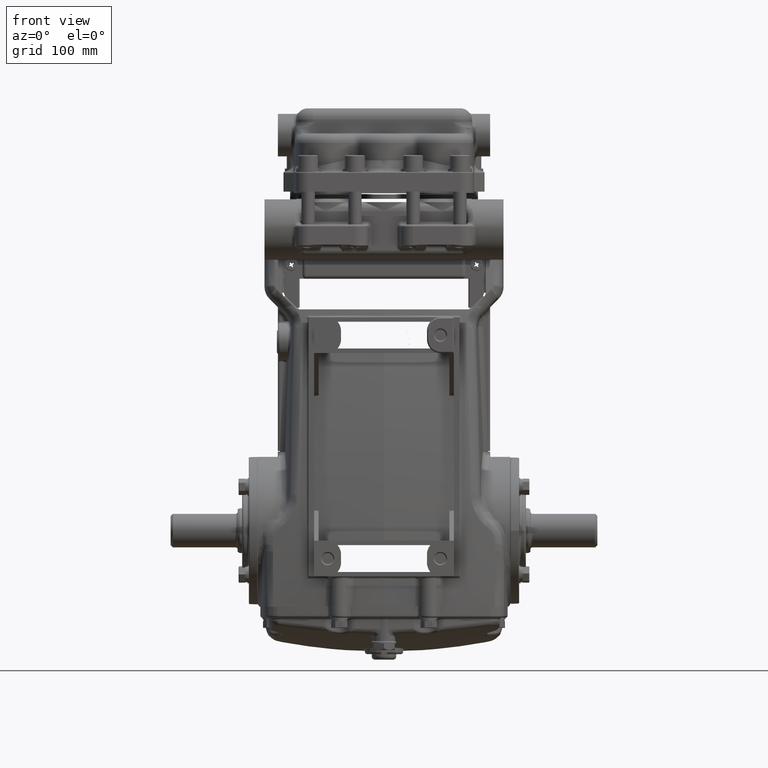
[diagram: clean part render]
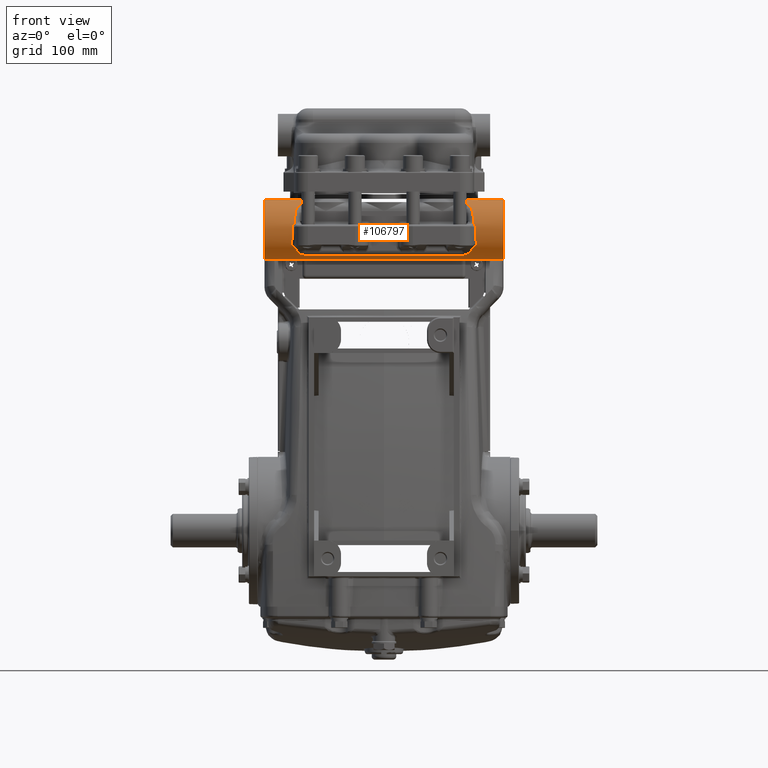
[diagram: same view with one face highlighted and labeled with its STEP entity id]
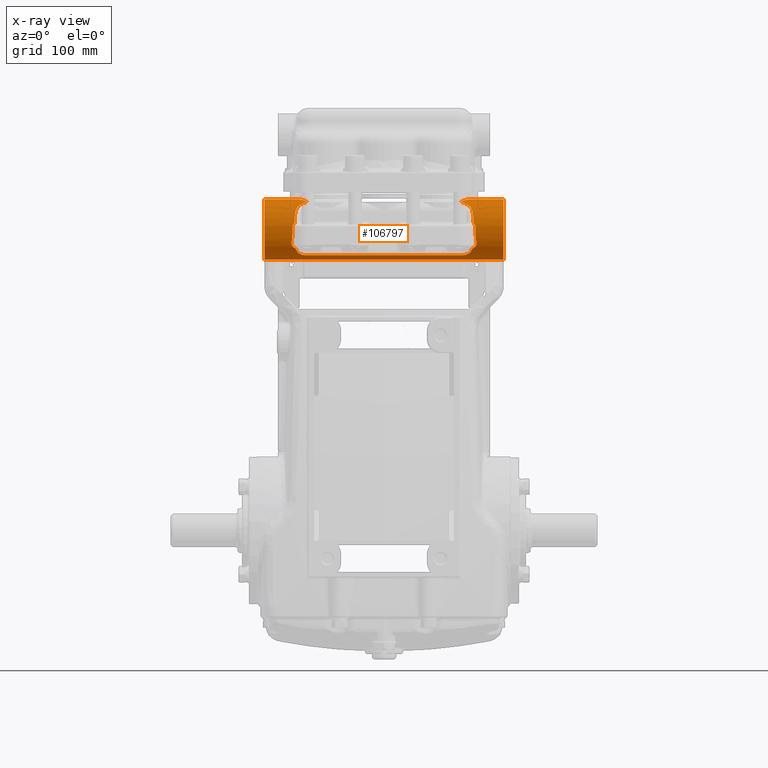
[diagram: x-ray of the same camera — body ghosted, the highlighted face saturated]
A machine part, front view. The second image highlights one B-rep face of the part: STEP entity #106797.
The next image is the same camera in x-ray: the body ghosted, the highlighted face saturated — about 0% of this face is hidden behind the body in this view.
In plain terms, the highlighted cylindrical surface (edge-blend (fillet) strip) has radius 27 mm, axis along (1, 0, 0).
Its self-contained STEP definition (entity closure, byte-faithful):
#29 = EDGE_CURVE ( 'NONE', #95721, #57629, #79998, .T. ) ;
#51 = CARTESIAN_POINT ( 'NONE',  ( 3.219834307693909548, -3.737210286616310384, 10.52743367319381740 ) ) ;
#343 = CARTESIAN_POINT ( 'NONE',  ( -3.069685971103251809, -3.423581161372963866, 9.853132108676227574 ) ) ;
#532 = EDGE_CURVE ( 'NONE', #109257, #2074, #10434, .T. ) ;
#831 = CARTESIAN_POINT ( 'NONE',  ( -3.206766684728637795, -3.548363120745090082, 10.00116585368456867 ) ) ;
#899 = CARTESIAN_POINT ( 'NONE',  ( -3.015540796630078013, -3.352199229448795670, 9.788878403447439425 ) ) ;
#1342 = CARTESIAN_POINT ( 'NONE',  ( -3.132279291211912842, -3.573409068969555680, 11.18253037871627242 ) ) ;
#1771 = ORIENTED_EDGE ( 'NONE', *, *, #51447, .F. ) ;
#1891 = CARTESIAN_POINT ( 'NONE',  ( -3.149598715442914809, -3.703225729308054603, 10.89402009235990931 ) ) ;
#1901 = CARTESIAN_POINT ( 'NONE',  ( 3.045762744328535110, -2.677165354330709679, 11.67322834645669438 ) ) ;
#1997 = CARTESIAN_POINT ( 'NONE',  ( -2.864332904029728066, -3.250795395109904451, 9.715249696813636149 ) ) ;
#2074 = VERTEX_POINT ( 'NONE', #99339 ) ;
#2097 = VECTOR ( 'NONE', #34382, 39.37007874015748143 ) ;
#2437 = B_SPLINE_CURVE_WITH_KNOTS ( 'NONE', 3,
 ( #5630, #111979, #85089, #94796, #66775, #41607, #25042, #33044, #50773, #94223, #40457, #69055, #16494, #68493, #76499, #51346, #7917, #85656, #93660, #75928 ),
 .UNSPECIFIED., .F., .F.,
 ( 4, 2, 2, 2, 2, 2, 2, 2, 2, 4 ),
 ( 4.336808689942017736E-19, 0.0008495751487899506123, 0.001699150297579900791, 0.003398300595159852323, 0.005097450892739803854, 0.006796601190319755820, 0.008495751487899706050, 0.01019490178547965802, 0.01189405208305960998, 0.01359320238063956195 ),
 .UNSPECIFIED. ) ;
#2471 = CARTESIAN_POINT ( 'NONE',  ( -3.036664178223239308, -3.377273783015291020, 11.41011149074232911 ) ) ;
#2920 = CARTESIAN_POINT ( 'NONE',  ( -2.734411693662819332, -3.075015931305001171, 11.59743843271280994 ) ) ;
#3476 = CARTESIAN_POINT ( 'NONE',  ( -2.703063879007835180, -3.123889988894102299, 11.57480314960629819 ) ) ;
#4662 = CARTESIAN_POINT ( 'NONE',  ( -2.893887638193734180, -2.886917786378004447, 11.65259511614607035 ) ) ;
#4828 = LINE ( 'NONE', #57971, #112797 ) ;
#4916 = CARTESIAN_POINT ( 'NONE',  ( -3.236622165656362071, -3.698532371087992487, 10.31175103902605628 ) ) ;
#5079 = CARTESIAN_POINT ( 'NONE',  ( 3.132279291211913286, -3.573409068969555680, 11.18253037871627242 ) ) ;
#5263 = VERTEX_POINT ( 'NONE', #106747 ) ;
#5333 = CARTESIAN_POINT ( 'NONE',  ( -2.782440837087044372, -3.149836915423003703, 11.56237251294183110 ) ) ;
#5630 = CARTESIAN_POINT ( 'NONE',  ( 2.755905511811024056, -3.232820329277022342, 9.704035465274161609 ) ) ;
#5805 = B_SPLINE_CURVE_WITH_KNOTS ( 'NONE', 3,
 ( #831, #89973, #108259, #30471, #97998, #48182, #83079, #81377 ),
 .UNSPECIFIED., .F., .F.,
 ( 4, 2, 2, 4 ),
 ( 0.000000000000000000, 0.001491846634435635335, 0.002237769951653452785, 0.002983693268871270669 ),
 .UNSPECIFIED. ) ;
#5834 = CARTESIAN_POINT ( 'NONE',  ( -3.176280486176047191, -3.528911389200699134, 9.974073427253149049 ) ) ;
#5847 = CARTESIAN_POINT ( 'NONE',  ( 3.206766684728639127, -3.548363120745090082, 10.00116585368456867 ) ) ;
#6407 = CARTESIAN_POINT ( 'NONE',  ( -3.115194936705631967, -3.497917189525167281, 9.934695475503065865 ) ) ;
#6555 = CARTESIAN_POINT ( 'NONE',  ( 3.257404880784307011, -3.626447676547790433, 10.13188976377952599 ) ) ;
#7218 = ORIENTED_EDGE ( 'NONE', *, *, #111706, .F. ) ;
#7593 = VERTEX_POINT ( 'NONE', #81544 ) ;
#7892 = CARTESIAN_POINT ( 'NONE',  ( -3.215049494645032535, -3.731506597940573045, 10.74573642007671204 ) ) ;
#7917 = CARTESIAN_POINT ( 'NONE',  ( 3.078161614725341444, -3.437912990709868222, 9.867507465431391012 ) ) ;
#9006 = CARTESIAN_POINT ( 'NONE',  ( -3.149606191704699576, -3.715641493415086760, 10.83721544519779734 ) ) ;
#9083 = CARTESIAN_POINT ( 'NONE',  ( 2.957096612547518877, -3.290505661080711963, 11.47884158129839527 ) ) ;
#9209 = CARTESIAN_POINT ( 'NONE',  ( 3.045762744328535110, -2.677165354330709679, 11.67322834645669438 ) ) ;
#9697 = CARTESIAN_POINT ( 'NONE',  ( 3.124344831771431519, -3.502161705685002513, 9.939877122648191232 ) ) ;
#10001 = CARTESIAN_POINT ( 'NONE',  ( 2.734411693662820220, -3.075015931305001171, 11.59743843271280994 ) ) ;
#10183 = VERTEX_POINT ( 'NONE', #95609 ) ;
#10434 = CIRCLE ( 'NONE', #74228, 1.062992125984251857 ) ;
#10618 = CARTESIAN_POINT ( 'NONE',  ( 3.219426393084986238, -3.557067703654892998, 10.01361665346421148 ) ) ;
#10762 = CARTESIAN_POINT ( 'NONE',  ( 2.769180171945586189, -3.140055375377999169, 11.56716607815148024 ) ) ;
#10887 = VERTEX_POINT ( 'NONE', #27099 ) ;
#11169 = CARTESIAN_POINT ( 'NONE',  ( 4.212598425196850904, -2.677165354330709679, 11.67322834645669438 ) ) ;
#11367 = CARTESIAN_POINT ( 'NONE',  ( -3.256021875541832422, -3.604499970963353395, 10.09061831402645915 ) ) ;
#11459 = VERTEX_POINT ( 'NONE', #11367 ) ;
#12250 = VERTEX_POINT ( 'NONE', #84070 ) ;
#12408 = ORIENTED_EDGE ( 'NONE', *, *, #45815, .F. ) ;
#12802 = CARTESIAN_POINT ( 'NONE',  ( -2.789061367396744817, -3.154719560246674437, 11.55993316265685245 ) ) ;
#12831 = VECTOR ( 'NONE', #94978, 39.37007874015748143 ) ;
#13102 = CARTESIAN_POINT ( 'NONE',  ( 3.110992760257861534, -3.507095954235412982, 11.27459093538011814 ) ) ;
#13365 = CARTESIAN_POINT ( 'NONE',  ( -2.860917082337589790, -3.208676869834902856, 11.53107944868841628 ) ) ;
#13856 = CARTESIAN_POINT ( 'NONE',  ( -3.206766684728637795, -3.548363120745090082, 10.00116585368456867 ) ) ;
#14250 = ORIENTED_EDGE ( 'NONE', *, *, #15522, .T. ) ;
#15522 = EDGE_CURVE ( 'NONE', #112770, #70041, #100107, .T. ) ;
#15548 = CARTESIAN_POINT ( 'NONE',  ( 2.848187453478340014, -2.932928124879681686, 11.64226991921527343 ) ) ;
#15782 = B_SPLINE_CURVE_WITH_KNOTS ( 'NONE', 3,
 ( #79147, #10001, #68913, #35697 ),
 .UNSPECIFIED., .F., .F.,
 ( 4, 4 ),
 ( 0.0006626590939865120537, 0.005358847693079000357 ),
 .UNSPECIFIED. ) ;
#15878 = CARTESIAN_POINT ( 'NONE',  ( 3.215049494645033867, -3.731506597940573045, 10.74573642007671204 ) ) ;
#16096 = CARTESIAN_POINT ( 'NONE',  ( 3.223700129393566094, -3.728933653851702168, 10.45422301061208437 ) ) ;
#16494 = CARTESIAN_POINT ( 'NONE',  ( 3.015540796630078901, -3.352199229448795670, 9.788878403447439425 ) ) ;
#16779 = EDGE_CURVE ( 'NONE', #45216, #7593, #100262, .T. ) ;
#16823 = EDGE_CURVE ( 'NONE', #27263, #7593, #110858, .T. ) ;
#17221 = CARTESIAN_POINT ( 'NONE',  ( 3.247240120967012533, -3.667263346255338785, 10.22037733209156762 ) ) ;
#18296 = EDGE_CURVE ( 'NONE', #73608, #24784, #101885, .T. ) ;
#18314 = VERTEX_POINT ( 'NONE', #77267 ) ;
#18335 = CARTESIAN_POINT ( 'NONE',  ( 3.218239791042039943, -3.740564060635579668, 10.64974272841313052 ) ) ;
#18429 = EDGE_CURVE ( 'NONE', #24784, #92375, #109614, .T. ) ;
#18597 = ORIENTED_EDGE ( 'NONE', *, *, #53231, .T. ) ;
#18998 = ORIENTED_EDGE ( 'NONE', *, *, #103289, .F. ) ;
#19082 = CARTESIAN_POINT ( 'NONE',  ( -3.107429519491915482, -3.498176461920779357, 11.28558005805626152 ) ) ;
#19181 = CARTESIAN_POINT ( 'NONE',  ( -2.843708680402824207, -3.244227866256196080, 9.711114069840959928 ) ) ;
#19339 = CARTESIAN_POINT ( 'NONE',  ( 2.886296872217383402, -3.228705197050003139, 11.51927144089147426 ) ) ;
#19402 = B_SPLINE_CURVE_WITH_KNOTS ( 'NONE', 3,
 ( #104861, #43086, #68265, #103745 ),
 .UNSPECIFIED., .F., .F.,
 ( 4, 4 ),
 ( 0.000000000000000000, 0.001187826063824906631 ),
 .UNSPECIFIED. ) ;
#19409 = CARTESIAN_POINT ( 'NONE',  ( 3.150924689293978620, -3.515283072652620522, 9.956350537029539538 ) ) ;
#19764 = CARTESIAN_POINT ( 'NONE',  ( 3.256021875541833310, -3.604499970963353395, 10.09061831402645915 ) ) ;
#20056 = ORIENTED_EDGE ( 'NONE', *, *, #82809, .T. ) ;
#20095 = CARTESIAN_POINT ( 'NONE',  ( -2.767164655030086351, -3.025872284767706422, 11.61577007187296573 ) ) ;
#20319 = CARTESIAN_POINT ( 'NONE',  ( 3.246417559868115088, -3.585310303430194079, 10.05768491299726186 ) ) ;
#20445 = ORIENTED_EDGE ( 'NONE', *, *, #16823, .F. ) ;
#21843 = CARTESIAN_POINT ( 'NONE',  ( -2.824399946746749990, -2.954806220435177266, 11.63655858346388605 ) ) ;
#23076 = CARTESIAN_POINT ( 'NONE',  ( 3.149606191704700464, -3.715641493415086760, 10.83721544519779734 ) ) ;
#24348 = DIRECTION ( 'NONE',  ( -1.000000000000000000, -0.000000000000000000, -0.000000000000000000 ) ) ;
#24784 = VERTEX_POINT ( 'NONE', #11169 ) ;
#24910 = CARTESIAN_POINT ( 'NONE',  ( -4.212598425196850016, -3.232820329277022342, 9.704035465274161609 ) ) ;
#25007 = EDGE_CURVE ( 'NONE', #2074, #92375, #4828, .T. ) ;
#25042 = CARTESIAN_POINT ( 'NONE',  ( 2.864332904029729399, -3.250795395109904451, 9.715249696813636149 ) ) ;
#25205 = LINE ( 'NONE', #103556, #54940 ) ;
#25222 = CARTESIAN_POINT ( 'NONE',  ( 2.977640032402243175, -2.787960670884535030, 11.66864237985080521 ) ) ;
#25716 = CARTESIAN_POINT ( 'NONE',  ( 3.142233227876007895, -3.510833139466164265, 9.950692193275632036 ) ) ;
#26429 = CARTESIAN_POINT ( 'NONE',  ( -2.696815162708711799, -3.128142923548339116, 11.57282485865083466 ) ) ;
#26512 = CARTESIAN_POINT ( 'NONE',  ( -3.149606191704699576, -3.715641493415086760, 10.83721544519779734 ) ) ;
#26686 = CARTESIAN_POINT ( 'NONE',  ( -3.213154401202496402, -3.730656157903641024, 10.75218904431644695 ) ) ;
#26875 = CARTESIAN_POINT ( 'NONE',  ( 3.220188915482557590, -3.736460105195991144, 10.69881889763779448 ) ) ;
#27068 = CARTESIAN_POINT ( 'NONE',  ( -4.212598425196850016, -2.677165354330709679, 10.61023622047244253 ) ) ;
#27099 = CARTESIAN_POINT ( 'NONE',  ( 2.799682996578750416, -2.975608929221370769, 11.63047329709287148 ) ) ;
#27263 = VERTEX_POINT ( 'NONE', #76206 ) ;
#27545 = CARTESIAN_POINT ( 'NONE',  ( 3.120329391505896499, -3.532942632693188756, 11.24094915304321063 ) ) ;
#27630 = CYLINDRICAL_SURFACE ( 'NONE', #47736, 1.062992125984251857 ) ;
#27881 = CARTESIAN_POINT ( 'NONE',  ( 2.999344287789138530, -3.333235010200544135, 11.44703620337553218 ) ) ;
#28191 = CARTESIAN_POINT ( 'NONE',  ( -3.145180089888729213, -3.642572957259976096, 11.05608667829688230 ) ) ;
#28294 = CARTESIAN_POINT ( 'NONE',  ( -2.778230847305904305, -3.233405064343089830, 9.704393247873156270 ) ) ;
#28629 = CARTESIAN_POINT ( 'NONE',  ( 2.755905511811024500, -3.130243965405963724, 11.57183490604279896 ) ) ;
#28805 = CARTESIAN_POINT ( 'NONE',  ( -2.755905511811023612, -3.130243965405963724, 11.57183490604279896 ) ) ;
#29172 = CARTESIAN_POINT ( 'NONE',  ( 4.212598425196850904, -2.677165354330709679, 10.61023622047244253 ) ) ;
#29390 = CARTESIAN_POINT ( 'NONE',  ( 2.703063879007836512, -3.123889988894102299, 11.57480314960629819 ) ) ;
#29487 = ORIENTED_EDGE ( 'NONE', *, *, #44966, .T. ) ;
#29982 = CARTESIAN_POINT ( 'NONE',  ( 3.206766684728639127, -3.548363120745090082, 10.00116585368456867 ) ) ;
#30471 = CARTESIAN_POINT ( 'NONE',  ( -3.242787002142094366, -3.580471817703969606, 10.04981767958457084 ) ) ;
#30793 = CARTESIAN_POINT ( 'NONE',  ( 3.149250120630475713, -3.686305834633085698, 10.94923161688224944 ) ) ;
#30857 = B_SPLINE_CURVE_WITH_KNOTS ( 'NONE', 3,
 ( #3476, #2920, #20095, #37758 ),
 .UNSPECIFIED., .F., .F.,
 ( 4, 4 ),
 ( 0.0006626590939865120537, 0.005358847693079000357 ),
 .UNSPECIFIED. ) ;
#31062 = AXIS2_PLACEMENT_3D ( 'NONE', #29172, #57151, #81210 ) ;
#31193 = CARTESIAN_POINT ( 'NONE',  ( -3.231521219349141827, -3.711044992094422845, 10.35841801728183853 ) ) ;
#31354 = CARTESIAN_POINT ( 'NONE',  ( 3.128168243621216149, -3.557735311505013431, 11.20635196821153912 ) ) ;
#31539 = CARTESIAN_POINT ( 'NONE',  ( -3.124344831771431075, -3.502161705685002513, 9.939877122648191232 ) ) ;
#33044 = CARTESIAN_POINT ( 'NONE',  ( 2.903928192809250852, -3.267534822896893232, 9.726202175992195720 ) ) ;
#33196 = DIRECTION ( 'NONE',  ( 0.000000000000000000, 0.000000000000000000, -1.000000000000000000 ) ) ;
#33218 = CARTESIAN_POINT ( 'NONE',  ( 2.824399946746750878, -2.954806220435177266, 11.63655858346388605 ) ) ;
#33240 = CARTESIAN_POINT ( 'NONE',  ( -4.212598425196850016, -2.677165354330709679, 11.67322834645669261 ) ) ;
#33581 = CARTESIAN_POINT ( 'NONE',  ( -3.208503504809922635, -3.728864679514924507, 10.76490362756616648 ) ) ;
#33766 = CARTESIAN_POINT ( 'NONE',  ( 3.225460419117637478, -3.725055700257784430, 10.43004216937371886 ) ) ;
#34283 = EDGE_CURVE ( 'NONE', #67362, #18314, #72528, .T. ) ;
#34358 = CARTESIAN_POINT ( 'NONE',  ( 2.799682996578750416, -2.975608929221370769, 11.63047329709287148 ) ) ;
#34382 = DIRECTION ( 'NONE',  ( 1.000000000000000000, 0.000000000000000000, 0.000000000000000000 ) ) ;
#35643 = CARTESIAN_POINT ( 'NONE',  ( -3.086463418050846119, -3.452534142405696560, 11.33788073305197663 ) ) ;
#35697 = CARTESIAN_POINT ( 'NONE',  ( 2.799682996578750416, -2.975608929221370769, 11.63047329709287148 ) ) ;
#36116 = CARTESIAN_POINT ( 'NONE',  ( 3.146484559917392509, -3.654334087182100177, 11.02967162599870576 ) ) ;
#36293 = CARTESIAN_POINT ( 'NONE',  ( -2.767098590415977277, -3.232820329277023230, 9.704035465274166938 ) ) ;
#36538 = ORIENTED_EDGE ( 'NONE', *, *, #36962, .F. ) ;
#36599 = CARTESIAN_POINT ( 'NONE',  ( -3.105610106383473568, -3.494045331883674166, 9.930045539723588277 ) ) ;
#36962 = EDGE_CURVE ( 'NONE', #56017, #45683, #2437, .T. ) ;
#37295 = CARTESIAN_POINT ( 'NONE',  ( -3.141368885129316890, -3.616808601210161456, 11.10809668197720512 ) ) ;
#37758 = CARTESIAN_POINT ( 'NONE',  ( -2.799682996578749528, -2.975608929221370769, 11.63047329709287148 ) ) ;
#37918 = CARTESIAN_POINT ( 'NONE',  ( -2.957096612547518877, -3.290505661080711963, 11.47884158129839527 ) ) ;
#38058 = CARTESIAN_POINT ( 'NONE',  ( -3.218239791042039055, -3.740564060635579668, 10.64974272841313052 ) ) ;
#38487 = EDGE_CURVE ( 'NONE', #59347, #66707, #82623, .T. ) ;
#39180 = CARTESIAN_POINT ( 'NONE',  ( -3.223700129393564318, -3.728933653851702168, 10.45422301061208437 ) ) ;
#39579 = ORIENTED_EDGE ( 'NONE', *, *, #105617, .T. ) ;
#39623 = VECTOR ( 'NONE', #24348, 39.37007874015748143 ) ;
#40157 = CARTESIAN_POINT ( 'NONE',  ( -2.762480271941671894, -3.135112204920900147, 11.56954112670334389 ) ) ;
#40306 = CARTESIAN_POINT ( 'NONE',  ( -3.247240120967011645, -3.667263346255338785, 10.22037733209156762 ) ) ;
#40408 = CARTESIAN_POINT ( 'NONE',  ( 3.149606191704700464, -3.715641493415086760, 10.83721544519779734 ) ) ;
#40457 = CARTESIAN_POINT ( 'NONE',  ( 2.973217169197119869, -3.312491815908632287, 9.757839179841704791 ) ) ;
#40985 = ORIENTED_EDGE ( 'NONE', *, *, #92433, .T. ) ;
#41555 = CARTESIAN_POINT ( 'NONE',  ( 3.160720776411044763, -3.717361008518535126, 10.82934831371082574 ) ) ;
#41607 = CARTESIAN_POINT ( 'NONE',  ( 2.843708680402824651, -3.244227866256196080, 9.711114069840959928 ) ) ;
#41611 = EDGE_CURVE ( 'NONE', #10887, #73608, #65583, .T. ) ;
#41684 = EDGE_CURVE ( 'NONE', #109257, #5263, #44030, .T. ) ;
#42169 = CARTESIAN_POINT ( 'NONE',  ( -3.257404880784305679, -3.626447676547790433, 10.13188976377952599 ) ) ;
#42333 = CARTESIAN_POINT ( 'NONE',  ( 3.105610106383474900, -3.494045331883674166, 9.930045539723588277 ) ) ;
#42701 = CARTESIAN_POINT ( 'NONE',  ( 3.213154401202497290, -3.730656157903641024, 10.75218904431644695 ) ) ;
#43086 = CARTESIAN_POINT ( 'NONE',  ( 3.258420891724756796, -3.612090390931869788, 10.10416453540233128 ) ) ;
#43573 = CARTESIAN_POINT ( 'NONE',  ( -2.703063879007835180, -3.123889988894102299, 11.57480314960629819 ) ) ;
#43894 = ORIENTED_EDGE ( 'NONE', *, *, #34283, .F. ) ;
#43898 = CARTESIAN_POINT ( 'NONE',  ( 2.762480271941673227, -3.135112204920900147, 11.56954112670334389 ) ) ;
#44030 = LINE ( 'NONE', #93844, #12831 ) ;
#44124 = CARTESIAN_POINT ( 'NONE',  ( -2.699943423132624254, -3.126024971231180949, 11.57381436471691316 ) ) ;
#44868 = CARTESIAN_POINT ( 'NONE',  ( -2.903928192809249076, -3.267534822896893232, 9.726202175992195720 ) ) ;
#44966 = EDGE_CURVE ( 'NONE', #108571, #95721, #111543, .T. ) ;
#45088 = CARTESIAN_POINT ( 'NONE',  ( 3.206766684728639127, -3.548363120745090082, 10.00116585368456867 ) ) ;
#45216 = VERTEX_POINT ( 'NONE', #64292 ) ;
#45643 = CARTESIAN_POINT ( 'NONE',  ( 3.105610106383474900, -3.494045331883674166, 9.930045539723588277 ) ) ;
#45683 = VERTEX_POINT ( 'NONE', #42333 ) ;
#45728 = VECTOR ( 'NONE', #110552, 39.37007874015748143 ) ;
#45815 = EDGE_CURVE ( 'NONE', #53615, #66707, #25205, .T. ) ;
#47736 = AXIS2_PLACEMENT_3D ( 'NONE', #27068, #61956, #96847 ) ;
#47934 = CARTESIAN_POINT ( 'NONE',  ( 3.051767344483798272, -3.396129209698627971, 11.39360786369183565 ) ) ;
#48182 = CARTESIAN_POINT ( 'NONE',  ( -3.252264525698432163, -3.594917117161987807, 10.07379246965833275 ) ) ;
#48502 = CARTESIAN_POINT ( 'NONE',  ( 3.117436421963131199, -3.524464725546583299, 11.25229210855027873 ) ) ;
#48682 = CARTESIAN_POINT ( 'NONE',  ( -3.105610106383473568, -3.494045331883674166, 9.930045539723588277 ) ) ;
#48760 = CARTESIAN_POINT ( 'NONE',  ( -2.999344287789138086, -3.333235010200544135, 11.44703620337553218 ) ) ;
#49197 = ORIENTED_EDGE ( 'NONE', *, *, #18429, .F. ) ;
#49276 = ORIENTED_EDGE ( 'NONE', *, *, #38487, .T. ) ;
#49582 = CARTESIAN_POINT ( 'NONE',  ( 3.188840524616923133, -3.723124609475994440, 10.80004651368894031 ) ) ;
#49800 = CARTESIAN_POINT ( 'NONE',  ( -2.799682996578749528, -2.975608929221370769, 11.63047329709287148 ) ) ;
#50169 = ORIENTED_EDGE ( 'NONE', *, *, #532, .T. ) ;
#50726 = CARTESIAN_POINT ( 'NONE',  ( 3.205744897195346166, -3.727924990650921089, 10.77114894337148776 ) ) ;
#50773 = CARTESIAN_POINT ( 'NONE',  ( 2.922927739916776790, -3.277799481127758430, 9.733093565272746162 ) ) ;
#50936 = CARTESIAN_POINT ( 'NONE',  ( 3.220881609620508623, -3.735021758333163522, 10.50301445943855505 ) ) ;
#51325 = ORIENTED_EDGE ( 'NONE', *, *, #81753, .F. ) ;
#51346 = CARTESIAN_POINT ( 'NONE',  ( 3.069685971103253141, -3.423581161372963866, 9.853132108676227574 ) ) ;
#51447 = EDGE_CURVE ( 'NONE', #99898, #53615, #82992, .T. ) ;
#51887 = CARTESIAN_POINT ( 'NONE',  ( -3.196450022076894548, -3.725081315026928408, 10.78903843088051495 ) ) ;
#51949 = EDGE_LOOP ( 'NONE', ( #97485, #50169, #113095, #49197, #71038, #69290, #73492, #49276, #12408, #1771, #76272, #18998, #51325, #7218, #43894, #91167, #36538, #40985, #29487, #53328, #20056, #82143, #39579, #14250, #18597, #93150, #99447, #20445, #58013, #95545 ) ) ;
#52035 = CARTESIAN_POINT ( 'NONE',  ( 3.176280486176048523, -3.528911389200699134, 9.974073427253149049 ) ) ;
#52266 = CARTESIAN_POINT ( 'NONE',  ( -3.149250120630474381, -3.686305834633085698, 10.94923161688224944 ) ) ;
#52451 = CARTESIAN_POINT ( 'NONE',  ( -3.188840524616921801, -3.723124609475994440, 10.80004651368894031 ) ) ;
#52818 = CARTESIAN_POINT ( 'NONE',  ( -3.146484559917391177, -3.654334087182100177, 11.02967162599870576 ) ) ;
#53139 = CARTESIAN_POINT ( 'NONE',  ( 3.115194936705634188, -3.497917189525167281, 9.934695475503065865 ) ) ;
#53231 = EDGE_CURVE ( 'NONE', #70041, #65031, #86872, .T. ) ;
#53328 = ORIENTED_EDGE ( 'NONE', *, *, #29, .T. ) ;
#53615 = VERTEX_POINT ( 'NONE', #28629 ) ;
#53620 = CARTESIAN_POINT ( 'NONE',  ( 2.789061367396745261, -3.154719560246674437, 11.55993316265685245 ) ) ;
#53851 = CARTESIAN_POINT ( 'NONE',  ( 3.138880120609019109, -3.602940161174652545, 11.13341344341195693 ) ) ;
#53924 = CARTESIAN_POINT ( 'NONE',  ( -3.051767344483796496, -3.396129209698627971, 11.39360786369183565 ) ) ;
#54026 = CARTESIAN_POINT ( 'NONE',  ( -3.050489499843337171, -3.394909791006166966, 9.825898208692629865 ) ) ;
#54596 = CARTESIAN_POINT ( 'NONE',  ( -3.256021875541832422, -3.604499970963353395, 10.09061831402645915 ) ) ;
#54599 = CARTESIAN_POINT ( 'NONE',  ( 3.254509456216940322, -3.599714718606093378, 10.08207832703762818 ) ) ;
#54940 = VECTOR ( 'NONE', #86382, 39.37007874015748143 ) ;
#55658 = CARTESIAN_POINT ( 'NONE',  ( -2.769180171945585300, -3.140055375377999169, 11.56716607815148024 ) ) ;
#56017 = VERTEX_POINT ( 'NONE', #88900 ) ;
#56176 = B_SPLINE_CURVE_WITH_KNOTS ( 'NONE', 3,
 ( #45643, #53139, #9697, #25716, #19409, #52035, #80551, #45088 ),
 .UNSPECIFIED., .F., .F.,
 ( 4, 2, 2, 4 ),
 ( 3.226179751796834653E-14, 0.0008627430018154125290, 0.001725486003598563104, 0.003450972007164938415 ),
 .UNSPECIFIED. ) ;
#56429 = EDGE_CURVE ( 'NONE', #10183, #5263, #61822, .T. ) ;
#56693 = CARTESIAN_POINT ( 'NONE',  ( -3.014191481258476468, -2.734511504605220633, 11.67322834645669793 ) ) ;
#57151 = DIRECTION ( 'NONE',  ( 1.000000000000000000, -0.000000000000000000, -0.000000000000000000 ) ) ;
#57629 = VERTEX_POINT ( 'NONE', #66680 ) ;
#57971 = CARTESIAN_POINT ( 'NONE',  ( -4.212598425196850016, -2.677165354330709679, 9.547244094488190669 ) ) ;
#58013 = ORIENTED_EDGE ( 'NONE', *, *, #65948, .T. ) ;
#58062 = CARTESIAN_POINT ( 'NONE',  ( -3.220188915482556258, -3.736460105195991144, 10.69881889763779448 ) ) ;
#58954 = CARTESIAN_POINT ( 'NONE',  ( -2.915774764675796771, -2.862791640659240411, 11.65719938928371668 ) ) ;
#59347 = VERTEX_POINT ( 'NONE', #76581 ) ;
#60442 = CARTESIAN_POINT ( 'NONE',  ( 3.170890327953610477, -3.719243264241546942, 10.82031320757687176 ) ) ;
#60950 = CARTESIAN_POINT ( 'NONE',  ( -2.957452934091792773, -3.300243642539494093, 9.748891899885816059 ) ) ;
#61026 = CARTESIAN_POINT ( 'NONE',  ( -3.170890327953608701, -3.719243264241546942, 10.82031320757687176 ) ) ;
#61822 = B_SPLINE_CURVE_WITH_KNOTS ( 'NONE', 3,
 ( #49800, #21843, #82430, #4662, #58954, #84694, #56693, #91591 ),
 .UNSPECIFIED., .F., .F.,
 ( 4, 2, 2, 4 ),
 ( 0.000000000000000000, 0.002500555535181656595, 0.005001111070363313191, 0.01000222214072661250 ),
 .UNSPECIFIED. ) ;
#61956 = DIRECTION ( 'NONE',  ( 1.000000000000000000, 0.000000000000000000, 0.000000000000000000 ) ) ;
#62204 = CARTESIAN_POINT ( 'NONE',  ( 3.018878343595046587, -3.355069200542429630, 11.42954654008374682 ) ) ;
#62434 = CARTESIAN_POINT ( 'NONE',  ( 3.064503233560943674, -3.415075875872065403, 11.37584144276820730 ) ) ;
#62510 = CARTESIAN_POINT ( 'NONE',  ( -3.138880120609018221, -3.602940161174652545, 11.13341344341195693 ) ) ;
#62768 = CARTESIAN_POINT ( 'NONE',  ( 2.860917082337591122, -3.208676869834902856, 11.53107944868841628 ) ) ;
#63005 = CARTESIAN_POINT ( 'NONE',  ( 3.145180089888730546, -3.642572957259976096, 11.05608667829688230 ) ) ;
#63081 = CARTESIAN_POINT ( 'NONE',  ( -3.120329391505895167, -3.532942632693188756, 11.24094915304321063 ) ) ;
#63333 = CARTESIAN_POINT ( 'NONE',  ( 2.821996310785309436, -3.179148422639985760, 11.54730152213257455 ) ) ;
#63334 = B_SPLINE_CURVE_WITH_KNOTS ( 'NONE', 3,
 ( #88062, #96102, #17221, #86385, #85811, #33766, #16096, #50936, #51, #77228, #18335, #26875 ),
 .UNSPECIFIED., .F., .F.,
 ( 4, 2, 2, 2, 2, 4 ),
 ( 0.000000000000000000, 0.003699590490226105800, 0.007399180980452211599, 0.009248976225565270354, 0.01109877147067832998, 0.01479836196090444228 ),
 .UNSPECIFIED. ) ;
#63439 = CARTESIAN_POINT ( 'NONE',  ( -3.220188915482556258, -3.736460105195991144, 10.69881889763779448 ) ) ;
#64292 = CARTESIAN_POINT ( 'NONE',  ( -2.755905511811023612, -3.130243965405963724, 11.57183490604279896 ) ) ;
#64728 = B_SPLINE_CURVE_WITH_KNOTS ( 'NONE', 3,
 ( #109149, #89306, #30793, #36116, #63005, #65648, #53851, #5079, #31354, #27545, #48502, #13102, #91426, #108586, #83407, #62434, #47934, #101124 ),
 .UNSPECIFIED., .F., .F.,
 ( 4, 2, 2, 2, 2, 2, 2, 2, 4 ),
 ( 4.229017513630162336E-05, 0.004438176693397738806, 0.006636119952528379308, 0.008834063211659021544, 0.01103200647078966465, 0.01213097810035498186, 0.01322994972992029561, 0.01542789298905089361, 0.01762583624818149161 ),
 .UNSPECIFIED. ) ;
#64823 = CARTESIAN_POINT ( 'NONE',  ( 2.699943423132625586, -3.126024971231180949, 11.57381436471691316 ) ) ;
#64861 = CARTESIAN_POINT ( 'NONE',  ( 3.242787002142094366, -3.580471817703969606, 10.04981767958457084 ) ) ;
#65031 = VERTEX_POINT ( 'NONE', #105159 ) ;
#65377 = CARTESIAN_POINT ( 'NONE',  ( 2.693679080108632995, -3.130243965405963724, 11.57183490604279896 ) ) ;
#65583 = B_SPLINE_CURVE_WITH_KNOTS ( 'NONE', 3,
 ( #34358, #33218, #15548, #69782, #69230, #25222, #86398, #9209 ),
 .UNSPECIFIED., .F., .F.,
 ( 4, 2, 2, 4 ),
 ( 0.000000000000000000, 0.002500555535181656595, 0.005001111070363313191, 0.01000222214072661250 ),
 .UNSPECIFIED. ) ;
#65648 = CARTESIAN_POINT ( 'NONE',  ( 3.141368885129317778, -3.616808601210161456, 11.10809668197720512 ) ) ;
#65948 = EDGE_CURVE ( 'NONE', #27263, #10183, #30857, .T. ) ;
#66055 = CARTESIAN_POINT ( 'NONE',  ( -3.257404880784305679, -3.626447676547790433, 10.13188976377952599 ) ) ;
#66680 = CARTESIAN_POINT ( 'NONE',  ( -3.206766684728637795, -3.548363120745090082, 10.00116585368456867 ) ) ;
#66707 = VERTEX_POINT ( 'NONE', #101611 ) ;
#66775 = CARTESIAN_POINT ( 'NONE',  ( 2.811420048654378778, -3.237460295329848581, 9.706893036756520488 ) ) ;
#67362 = VERTEX_POINT ( 'NONE', #5847 ) ;
#68265 = CARTESIAN_POINT ( 'NONE',  ( 3.258885958966778684, -3.619408465427651933, 10.11792039370224217 ) ) ;
#68493 = CARTESIAN_POINT ( 'NONE',  ( 3.039772481542858618, -3.380568450688721249, 9.813038954935874969 ) ) ;
#68913 = CARTESIAN_POINT ( 'NONE',  ( 2.767164655030087683, -3.025872284767706422, 11.61577007187296573 ) ) ;
#69055 = CARTESIAN_POINT ( 'NONE',  ( 3.002246374612516977, -3.338447146077220928, 9.777813960101127577 ) ) ;
#69230 = CARTESIAN_POINT ( 'NONE',  ( 2.915774764675798103, -2.862791640659240411, 11.65719938928371668 ) ) ;
#69290 = ORIENTED_EDGE ( 'NONE', *, *, #41611, .F. ) ;
#69503 = CARTESIAN_POINT ( 'NONE',  ( -2.922927739916775014, -3.277799481127758430, 9.733093565272746162 ) ) ;
#69782 = CARTESIAN_POINT ( 'NONE',  ( 2.893887638193734180, -2.886917786378004447, 11.65259511614607035 ) ) ;
#69878 = CARTESIAN_POINT ( 'NONE',  ( -2.693679080108632107, -3.130243965405963724, 11.57183490604279896 ) ) ;
#70041 = VERTEX_POINT ( 'NONE', #108394 ) ;
#70056 = CARTESIAN_POINT ( 'NONE',  ( -3.093253909982565997, -3.466323849051142769, 9.897767386043954119 ) ) ;
#71038 = ORIENTED_EDGE ( 'NONE', *, *, #18296, .F. ) ;
#71730 = CARTESIAN_POINT ( 'NONE',  ( -2.973217169197119425, -3.312491815908632287, 9.757839179841704791 ) ) ;
#72138 = B_SPLINE_CURVE_WITH_KNOTS ( 'NONE', 3,
 ( #66055, #92400, #40306, #4916, #31193, #82103, #39180, #74639, #108425, #108984, #38058, #58062 ),
 .UNSPECIFIED., .F., .F.,
 ( 4, 2, 2, 2, 2, 4 ),
 ( 0.000000000000000000, 0.003699590490226105800, 0.007399180980452211599, 0.009248976225565270354, 0.01109877147067832998, 0.01479836196090444228 ),
 .UNSPECIFIED. ) ;
#72528 = B_SPLINE_CURVE_WITH_KNOTS ( 'NONE', 3,
 ( #29982, #10618, #90051, #64861, #20319, #72873, #54599, #19764 ),
 .UNSPECIFIED., .F., .F.,
 ( 4, 2, 2, 4 ),
 ( 0.000000000000000000, 0.001491846634435635335, 0.002237769951653452785, 0.002983693268871270669 ),
 .UNSPECIFIED. ) ;
#72873 = CARTESIAN_POINT ( 'NONE',  ( 3.252264525698433939, -3.594917117161987807, 10.07379246965833275 ) ) ;
#73492 = ORIENTED_EDGE ( 'NONE', *, *, #100586, .F. ) ;
#73608 = VERTEX_POINT ( 'NONE', #1901 ) ;
#73990 = B_SPLINE_CURVE_WITH_KNOTS ( 'NONE', 3,
 ( #85041, #75299, #103340, #15878, #42701, #110218, #50726, #102194, #49582, #60442, #41555, #40408 ),
 .UNSPECIFIED., .F., .F.,
 ( 4, 2, 2, 2, 2, 4 ),
 ( 0.000000000000000000, 0.001046877269931231974, 0.001570315904896768273, 0.002093754539862304788, 0.003140631809793532209, 0.004187509079724759629 ),
 .UNSPECIFIED. ) ;
#73998 = CARTESIAN_POINT ( 'NONE',  ( -3.258420891724755908, -3.612090390931869788, 10.10416453540233128 ) ) ;
#74228 = AXIS2_PLACEMENT_3D ( 'NONE', #111562, #77793, #33196 ) ;
#74498 = CARTESIAN_POINT ( 'NONE',  ( -2.934374433273142291, -3.269616479140359910, 11.49315348430913986 ) ) ;
#74639 = CARTESIAN_POINT ( 'NONE',  ( -3.220881609620507291, -3.735021758333163522, 10.50301445943855505 ) ) ;
#75060 = CARTESIAN_POINT ( 'NONE',  ( -3.018878343595046587, -3.355069200542429630, 11.42954654008374682 ) ) ;
#75299 = CARTESIAN_POINT ( 'NONE',  ( 3.220732506859863342, -3.735315552932712890, 10.71250575203618105 ) ) ;
#75432 = EDGE_CURVE ( 'NONE', #45683, #67362, #56176, .T. ) ;
#75928 = CARTESIAN_POINT ( 'NONE',  ( 3.105610106383474900, -3.494045331883674166, 9.930045539723588277 ) ) ;
#76206 = CARTESIAN_POINT ( 'NONE',  ( -2.703063879007835180, -3.123889988894102299, 11.57480314960629819 ) ) ;
#76272 = ORIENTED_EDGE ( 'NONE', *, *, #101206, .F. ) ;
#76499 = CARTESIAN_POINT ( 'NONE',  ( 3.050489499843338503, -3.394909791006166966, 9.825898208692629865 ) ) ;
#76581 = CARTESIAN_POINT ( 'NONE',  ( 2.703063879007836512, -3.123889988894102299, 11.57480314960629819 ) ) ;
#77045 = CARTESIAN_POINT ( 'NONE',  ( -3.220188915482556258, -3.736460105195991144, 10.69881889763779448 ) ) ;
#77050 = VERTEX_POINT ( 'NONE', #6555 ) ;
#77228 = CARTESIAN_POINT ( 'NONE',  ( 3.217896629540114350, -3.741242206008521531, 10.60076229780414003 ) ) ;
#77267 = CARTESIAN_POINT ( 'NONE',  ( 3.256021875541833310, -3.604499970963353395, 10.09061831402645915 ) ) ;
#77793 = DIRECTION ( 'NONE',  ( 1.000000000000000000, 0.000000000000000000, 0.000000000000000000 ) ) ;
#78643 = CARTESIAN_POINT ( 'NONE',  ( -2.800375900570753362, -3.235718931847221480, 9.705818171644533976 ) ) ;
#78796 = CARTESIAN_POINT ( 'NONE',  ( 2.755905511811024500, -3.130243965405963724, 11.57183490604279896 ) ) ;
#79101 = FACE_OUTER_BOUND ( 'NONE', #51949, .T. ) ;
#79147 = CARTESIAN_POINT ( 'NONE',  ( 2.703063879007836512, -3.123889988894102299, 11.57480314960629819 ) ) ;
#79657 = CARTESIAN_POINT ( 'NONE',  ( -3.117436421963130311, -3.524464725546583299, 11.25229210855027873 ) ) ;
#79998 = B_SPLINE_CURVE_WITH_KNOTS ( 'NONE', 3,
 ( #48682, #6407, #31539, #92181, #108773, #5834, #91622, #13856 ),
 .UNSPECIFIED., .F., .F.,
 ( 4, 2, 2, 4 ),
 ( 3.226179751796834653E-14, 0.0008627430018154125290, 0.001725486003598563104, 0.003450972007164938415 ),
 .UNSPECIFIED. ) ;
#80318 = CARTESIAN_POINT ( 'NONE',  ( -3.099870598685903200, -3.480424718511399895, 9.913687764381014844 ) ) ;
#80551 = CARTESIAN_POINT ( 'NONE',  ( 3.192234240075356944, -3.538370878759244942, 9.986873221216747254 ) ) ;
#80780 = CARTESIAN_POINT ( 'NONE',  ( -3.095675790714363718, -3.471050842015343640, 11.31768459577978980 ) ) ;
#81210 = DIRECTION ( 'NONE',  ( 0.000000000000000000, 0.000000000000000000, -1.000000000000000000 ) ) ;
#81377 = CARTESIAN_POINT ( 'NONE',  ( -3.256021875541832422, -3.604499970963353395, 10.09061831402645915 ) ) ;
#81390 = CARTESIAN_POINT ( 'NONE',  ( -2.886296872217382514, -3.228705197050003139, 11.51927144089147426 ) ) ;
#81544 = CARTESIAN_POINT ( 'NONE',  ( -2.693679080108632107, -3.130243965405963724, 11.57183490604279896 ) ) ;
#81753 = EDGE_CURVE ( 'NONE', #77050, #12250, #63334, .T. ) ;
#82103 = CARTESIAN_POINT ( 'NONE',  ( -3.225460419117637034, -3.725055700257784430, 10.43004216937371886 ) ) ;
#82143 = ORIENTED_EDGE ( 'NONE', *, *, #85872, .T. ) ;
#82430 = CARTESIAN_POINT ( 'NONE',  ( -2.848187453478338238, -2.932928124879681686, 11.64226991921527343 ) ) ;
#82623 = B_SPLINE_CURVE_WITH_KNOTS ( 'NONE', 3,
 ( #29390, #64823, #109431, #65377 ),
 .UNSPECIFIED., .F., .F.,
 ( 4, 4 ),
 ( 6.206335383118182794E-17, 0.0002941329561160671330 ),
 .UNSPECIFIED. ) ;
#82809 = EDGE_CURVE ( 'NONE', #57629, #11459, #5805, .T. ) ;
#82992 = B_SPLINE_CURVE_WITH_KNOTS ( 'NONE', 3,
 ( #87396, #62204, #27881, #9083, #97093, #19339, #62768, #63333, #106794, #53620, #89080, #10762, #43898, #78796 ),
 .UNSPECIFIED., .F., .F.,
 ( 4, 2, 2, 2, 2, 2, 4 ),
 ( 0.000000000000000000, 0.002589699775717744373, 0.005179399551435488747, 0.007769099327153233987, 0.009063949215012094898, 0.009711374158941549206, 0.01035879910287100351 ),
 .UNSPECIFIED. ) ;
#83079 = CARTESIAN_POINT ( 'NONE',  ( -3.254509456216938990, -3.599714718606093378, 10.08207832703762818 ) ) ;
#83407 = CARTESIAN_POINT ( 'NONE',  ( 3.086463418050847451, -3.452534142405696560, 11.33788073305197663 ) ) ;
#83657 = CARTESIAN_POINT ( 'NONE',  ( -2.821996310785308104, -3.179148422639985760, 11.54730152213257455 ) ) ;
#84070 = CARTESIAN_POINT ( 'NONE',  ( 3.220188915482557590, -3.736460105195991144, 10.69881889763779448 ) ) ;
#84694 = CARTESIAN_POINT ( 'NONE',  ( -2.977640032402240955, -2.787960670884535030, 11.66864237985080521 ) ) ;
#85041 = CARTESIAN_POINT ( 'NONE',  ( 3.220188915482557590, -3.736460105195991144, 10.69881889763779448 ) ) ;
#85089 = CARTESIAN_POINT ( 'NONE',  ( 2.778230847305906082, -3.233405064343089830, 9.704393247873156270 ) ) ;
#85163 = VERTEX_POINT ( 'NONE', #23076 ) ;
#85656 = CARTESIAN_POINT ( 'NONE',  ( 3.093253909982566885, -3.466323849051142769, 9.897767386043954119 ) ) ;
#85811 = CARTESIAN_POINT ( 'NONE',  ( 3.231521219349142271, -3.711044992094422845, 10.35841801728183853 ) ) ;
#85872 = EDGE_CURVE ( 'NONE', #11459, #91248, #97915, .T. ) ;
#86382 = DIRECTION ( 'NONE',  ( -1.000000000000000000, 0.000000000000000000, 0.000000000000000000 ) ) ;
#86385 = CARTESIAN_POINT ( 'NONE',  ( 3.236622165656364292, -3.698532371087992487, 10.31175103902605628 ) ) ;
#86398 = CARTESIAN_POINT ( 'NONE',  ( 3.014191481258477356, -2.734511504605220633, 11.67322834645669793 ) ) ;
#86872 = B_SPLINE_CURVE_WITH_KNOTS ( 'NONE', 3,
 ( #26512, #1891, #52266, #52818, #28191, #37295, #62510, #1342, #96840, #63081, #79657, #104872, #19082, #80780, #35643, #95724, #53924, #2471 ),
 .UNSPECIFIED., .F., .F.,
 ( 4, 2, 2, 2, 2, 2, 2, 2, 4 ),
 ( 4.229017513630162336E-05, 0.004438176693397738806, 0.006636119952528379308, 0.008834063211659021544, 0.01103200647078966465, 0.01213097810035498186, 0.01322994972992029561, 0.01542789298905089361, 0.01762583624818149161 ),
 .UNSPECIFIED. ) ;
#87319 = CARTESIAN_POINT ( 'NONE',  ( -3.205744897195344834, -3.727924990650921089, 10.77114894337148776 ) ) ;
#87396 = CARTESIAN_POINT ( 'NONE',  ( 3.036664178223240640, -3.377273783015291020, 11.41011149074232911 ) ) ;
#88062 = CARTESIAN_POINT ( 'NONE',  ( 3.257404880784307011, -3.626447676547790433, 10.13188976377952599 ) ) ;
#88900 = CARTESIAN_POINT ( 'NONE',  ( 2.755905511811024056, -3.232820329277022342, 9.704035465274161609 ) ) ;
#88925 = CARTESIAN_POINT ( 'NONE',  ( -3.078161614725341000, -3.437912990709868222, 9.867507465431391012 ) ) ;
#89080 = CARTESIAN_POINT ( 'NONE',  ( 2.782440837087045704, -3.149836915423003703, 11.56237251294183110 ) ) ;
#89306 = CARTESIAN_POINT ( 'NONE',  ( 3.149598715442916141, -3.703225729308054603, 10.89402009235990931 ) ) ;
#89494 = CARTESIAN_POINT ( 'NONE',  ( -3.258885958966777796, -3.619408465427651933, 10.11792039370224217 ) ) ;
#89973 = CARTESIAN_POINT ( 'NONE',  ( -3.219426393084985349, -3.557067703654892998, 10.01361665346421148 ) ) ;
#90051 = CARTESIAN_POINT ( 'NONE',  ( 3.230121684266948456, -3.566202931403033904, 10.02724270609084201 ) ) ;
#91167 = ORIENTED_EDGE ( 'NONE', *, *, #75432, .F. ) ;
#91248 = VERTEX_POINT ( 'NONE', #42169 ) ;
#91426 = CARTESIAN_POINT ( 'NONE',  ( 3.107429519491917702, -3.498176461920779357, 11.28558005805626152 ) ) ;
#91591 = CARTESIAN_POINT ( 'NONE',  ( -3.045762744328533778, -2.677165354330709679, 11.67322834645669438 ) ) ;
#91622 = CARTESIAN_POINT ( 'NONE',  ( -3.192234240075356499, -3.538370878759244942, 9.986873221216747254 ) ) ;
#92181 = CARTESIAN_POINT ( 'NONE',  ( -3.142233227876007007, -3.510833139466164265, 9.950692193275632036 ) ) ;
#92259 = CARTESIAN_POINT ( 'NONE',  ( -3.036664178223239308, -3.377273783015291020, 11.41011149074232911 ) ) ;
#92375 = VERTEX_POINT ( 'NONE', #112955 ) ;
#92400 = CARTESIAN_POINT ( 'NONE',  ( -3.252763095109839409, -3.648508976027921236, 10.17567058688086767 ) ) ;
#92433 = EDGE_CURVE ( 'NONE', #56017, #108571, #102683, .T. ) ;
#92864 = DIRECTION ( 'NONE',  ( 1.000000000000000000, 0.000000000000000000, 0.000000000000000000 ) ) ;
#93150 = ORIENTED_EDGE ( 'NONE', *, *, #106033, .T. ) ;
#93506 = CARTESIAN_POINT ( 'NONE',  ( -2.755905511811022723, -3.232820329277022342, 9.704035465274161609 ) ) ;
#93660 = CARTESIAN_POINT ( 'NONE',  ( 3.099870598685904532, -3.480424718511399895, 9.913687764381014844 ) ) ;
#93844 = CARTESIAN_POINT ( 'NONE',  ( -4.212598425196850016, -2.677165354330709679, 11.67322834645669261 ) ) ;
#94223 = CARTESIAN_POINT ( 'NONE',  ( 2.957452934091792773, -3.300243642539494093, 9.748891899885816059 ) ) ;
#94796 = CARTESIAN_POINT ( 'NONE',  ( 2.800375900570753362, -3.235718931847221480, 9.705818171644533976 ) ) ;
#94978 = DIRECTION ( 'NONE',  ( 1.000000000000000000, 0.000000000000000000, 0.000000000000000000 ) ) ;
#95343 = CARTESIAN_POINT ( 'NONE',  ( -3.219467422019269609, -3.733906972888533460, 10.72609570507596288 ) ) ;
#95545 = ORIENTED_EDGE ( 'NONE', *, *, #56429, .T. ) ;
#95609 = CARTESIAN_POINT ( 'NONE',  ( -2.799682996578749528, -2.975608929221370769, 11.63047329709287148 ) ) ;
#95721 = VERTEX_POINT ( 'NONE', #36599 ) ;
#95724 = CARTESIAN_POINT ( 'NONE',  ( -3.064503233560942785, -3.415075875872065403, 11.37584144276820730 ) ) ;
#96102 = CARTESIAN_POINT ( 'NONE',  ( 3.252763095109840741, -3.648508976027921236, 10.17567058688086767 ) ) ;
#96470 = CARTESIAN_POINT ( 'NONE',  ( -3.160720776411044319, -3.717361008518535126, 10.82934831371082574 ) ) ;
#96840 = CARTESIAN_POINT ( 'NONE',  ( -3.128168243621214817, -3.557735311505013431, 11.20635196821153912 ) ) ;
#96847 = DIRECTION ( 'NONE',  ( 0.000000000000000000, 0.000000000000000000, -1.000000000000000000 ) ) ;
#96936 = CARTESIAN_POINT ( 'NONE',  ( -3.039772481542857285, -3.380568450688721249, 9.813038954935874969 ) ) ;
#97093 = CARTESIAN_POINT ( 'NONE',  ( 2.934374433273144067, -3.269616479140359910, 11.49315348430913986 ) ) ;
#97485 = ORIENTED_EDGE ( 'NONE', *, *, #41684, .F. ) ;
#97494 = CARTESIAN_POINT ( 'NONE',  ( -3.002246374612516089, -3.338447146077220928, 9.777813960101127577 ) ) ;
#97915 = B_SPLINE_CURVE_WITH_KNOTS ( 'NONE', 3,
 ( #54596, #73998, #89494, #108903 ),
 .UNSPECIFIED., .F., .F.,
 ( 4, 4 ),
 ( 0.000000000000000000, 0.001187826063824906631 ),
 .UNSPECIFIED. ) ;
#97998 = CARTESIAN_POINT ( 'NONE',  ( -3.246417559868114200, -3.585310303430194079, 10.05768491299726186 ) ) ;
#98061 = CARTESIAN_POINT ( 'NONE',  ( -2.811420048654378334, -3.237460295329848581, 9.706893036756520488 ) ) ;
#99339 = CARTESIAN_POINT ( 'NONE',  ( -4.212598425196850016, -2.677165354330709679, 9.547244094488190669 ) ) ;
#99447 = ORIENTED_EDGE ( 'NONE', *, *, #16779, .T. ) ;
#99898 = VERTEX_POINT ( 'NONE', #109693 ) ;
#100107 = B_SPLINE_CURVE_WITH_KNOTS ( 'NONE', 3,
 ( #77045, #103364, #95343, #7892, #26686, #33581, #87319, #51887, #52451, #61026, #96470, #9006 ),
 .UNSPECIFIED., .F., .F.,
 ( 4, 2, 2, 2, 2, 4 ),
 ( 0.000000000000000000, 0.001046877269931231974, 0.001570315904896768273, 0.002093754539862304788, 0.003140631809793532209, 0.004187509079724759629 ),
 .UNSPECIFIED. ) ;
#100262 = LINE ( 'NONE', #109978, #45728 ) ;
#100586 = EDGE_CURVE ( 'NONE', #59347, #10887, #15782, .T. ) ;
#101124 = CARTESIAN_POINT ( 'NONE',  ( 3.036664178223240640, -3.377273783015291020, 11.41011149074232911 ) ) ;
#101206 = EDGE_CURVE ( 'NONE', #85163, #99898, #64728, .T. ) ;
#101611 = CARTESIAN_POINT ( 'NONE',  ( 2.693679080108632995, -3.130243965405963724, 11.57183490604279896 ) ) ;
#101703 = CARTESIAN_POINT ( 'NONE',  ( -4.212598425196850016, -2.677165354330709679, 11.67322834645669438 ) ) ;
#101885 = LINE ( 'NONE', #33240, #2097 ) ;
#102194 = CARTESIAN_POINT ( 'NONE',  ( 3.196450022076894992, -3.725081315026928408, 10.78903843088051495 ) ) ;
#102683 = LINE ( 'NONE', #24910, #39623 ) ;
#103289 = EDGE_CURVE ( 'NONE', #12250, #85163, #73990, .T. ) ;
#103340 = CARTESIAN_POINT ( 'NONE',  ( 3.219467422019271385, -3.733906972888533460, 10.72609570507596288 ) ) ;
#103364 = CARTESIAN_POINT ( 'NONE',  ( -3.220732506859862454, -3.735315552932712890, 10.71250575203618105 ) ) ;
#103556 = CARTESIAN_POINT ( 'NONE',  ( 4.212598425196850904, -3.130243965405963724, 11.57183490604279896 ) ) ;
#103745 = CARTESIAN_POINT ( 'NONE',  ( 3.257404880784307011, -3.626447676547790433, 10.13188976377952599 ) ) ;
#104861 = CARTESIAN_POINT ( 'NONE',  ( 3.256021875541833310, -3.604499970963353395, 10.09061831402645915 ) ) ;
#104872 = CARTESIAN_POINT ( 'NONE',  ( -3.110992760257860645, -3.507095954235412982, 11.27459093538011814 ) ) ;
#104971 = CARTESIAN_POINT ( 'NONE',  ( -3.105610106383473568, -3.494045331883674166, 9.930045539723588277 ) ) ;
#105159 = CARTESIAN_POINT ( 'NONE',  ( -3.036664178223239308, -3.377273783015291020, 11.41011149074232911 ) ) ;
#105617 = EDGE_CURVE ( 'NONE', #91248, #112770, #72138, .T. ) ;
#106033 = EDGE_CURVE ( 'NONE', #65031, #45216, #113092, .T. ) ;
#106747 = CARTESIAN_POINT ( 'NONE',  ( -3.045762744328533778, -2.677165354330709679, 11.67322834645669438 ) ) ;
#106794 = CARTESIAN_POINT ( 'NONE',  ( 2.808866143032624496, -3.169371640562517189, 11.55247047924787651 ) ) ;
#106797 = ADVANCED_FACE ( 'NONE', ( #79101 ), #27630, .T. ) ;
#108259 = CARTESIAN_POINT ( 'NONE',  ( -3.230121684266947568, -3.566202931403033904, 10.02724270609084201 ) ) ;
#108274 = CARTESIAN_POINT ( 'NONE',  ( -2.808866143032623608, -3.169371640562517189, 11.55247047924787651 ) ) ;
#108394 = CARTESIAN_POINT ( 'NONE',  ( -3.149606191704699576, -3.715641493415086760, 10.83721544519779734 ) ) ;
#108425 = CARTESIAN_POINT ( 'NONE',  ( -3.219834307693908659, -3.737210286616310384, 10.52743367319381740 ) ) ;
#108571 = VERTEX_POINT ( 'NONE', #93506 ) ;
#108586 = CARTESIAN_POINT ( 'NONE',  ( 3.095675790714365050, -3.471050842015343640, 11.31768459577978980 ) ) ;
#108773 = CARTESIAN_POINT ( 'NONE',  ( -3.150924689293977732, -3.515283072652620522, 9.956350537029539538 ) ) ;
#108903 = CARTESIAN_POINT ( 'NONE',  ( -3.257404880784305679, -3.626447676547790433, 10.13188976377952599 ) ) ;
#108984 = CARTESIAN_POINT ( 'NONE',  ( -3.217896629540113462, -3.741242206008521531, 10.60076229780414003 ) ) ;
#109149 = CARTESIAN_POINT ( 'NONE',  ( 3.149606191704700464, -3.715641493415086760, 10.83721544519779734 ) ) ;
#109257 = VERTEX_POINT ( 'NONE', #101703 ) ;
#109431 = CARTESIAN_POINT ( 'NONE',  ( 2.696815162708712688, -3.128142923548339116, 11.57282485865083466 ) ) ;
#109614 = CIRCLE ( 'NONE', #31062, 1.062992125984251857 ) ;
#109693 = CARTESIAN_POINT ( 'NONE',  ( 3.036664178223240640, -3.377273783015291020, 11.41011149074232911 ) ) ;
#109978 = CARTESIAN_POINT ( 'NONE',  ( -4.212598425196850016, -3.130243965405963724, 11.57183490604279896 ) ) ;
#110218 = CARTESIAN_POINT ( 'NONE',  ( 3.208503504809924411, -3.728864679514924507, 10.76490362756616648 ) ) ;
#110552 = DIRECTION ( 'NONE',  ( 1.000000000000000000, 0.000000000000000000, 0.000000000000000000 ) ) ;
#110858 = B_SPLINE_CURVE_WITH_KNOTS ( 'NONE', 3,
 ( #43573, #44124, #26429, #69878 ),
 .UNSPECIFIED., .F., .F.,
 ( 4, 4 ),
 ( 6.206335383118182794E-17, 0.0002941329561160671330 ),
 .UNSPECIFIED. ) ;
#111543 = B_SPLINE_CURVE_WITH_KNOTS ( 'NONE', 3,
 ( #112984, #36293, #28294, #78643, #98061, #19181, #1997, #44868, #69503, #60950, #71730, #97494, #899, #96936, #54026, #343, #88925, #70056, #80318, #104971 ),
 .UNSPECIFIED., .F., .F.,
 ( 4, 2, 2, 2, 2, 2, 2, 2, 2, 4 ),
 ( 4.336808689942017736E-19, 0.0008495751487899506123, 0.001699150297579900791, 0.003398300595159852323, 0.005097450892739803854, 0.006796601190319755820, 0.008495751487899706050, 0.01019490178547965802, 0.01189405208305960998, 0.01359320238063956195 ),
 .UNSPECIFIED. ) ;
#111562 = CARTESIAN_POINT ( 'NONE',  ( -4.212598425196850016, -2.677165354330709679, 10.61023622047244253 ) ) ;
#111706 = EDGE_CURVE ( 'NONE', #18314, #77050, #19402, .T. ) ;
#111979 = CARTESIAN_POINT ( 'NONE',  ( 2.767098590415979054, -3.232820329277023230, 9.704035465274166938 ) ) ;
#112770 = VERTEX_POINT ( 'NONE', #63439 ) ;
#112797 = VECTOR ( 'NONE', #92864, 39.37007874015748143 ) ;
#112955 = CARTESIAN_POINT ( 'NONE',  ( 4.212598425196850904, -2.677165354330709679, 9.547244094488190669 ) ) ;
#112984 = CARTESIAN_POINT ( 'NONE',  ( -2.755905511811022723, -3.232820329277022342, 9.704035465274161609 ) ) ;
#113092 = B_SPLINE_CURVE_WITH_KNOTS ( 'NONE', 3,
 ( #92259, #75060, #48760, #37918, #74498, #81390, #13365, #83657, #108274, #12802, #5333, #55658, #40157, #28805 ),
 .UNSPECIFIED., .F., .F.,
 ( 4, 2, 2, 2, 2, 2, 4 ),
 ( 0.000000000000000000, 0.002589699775717744373, 0.005179399551435488747, 0.007769099327153233987, 0.009063949215012094898, 0.009711374158941549206, 0.01035879910287100351 ),
 .UNSPECIFIED. ) ;
#113095 = ORIENTED_EDGE ( 'NONE', *, *, #25007, .T. ) ;